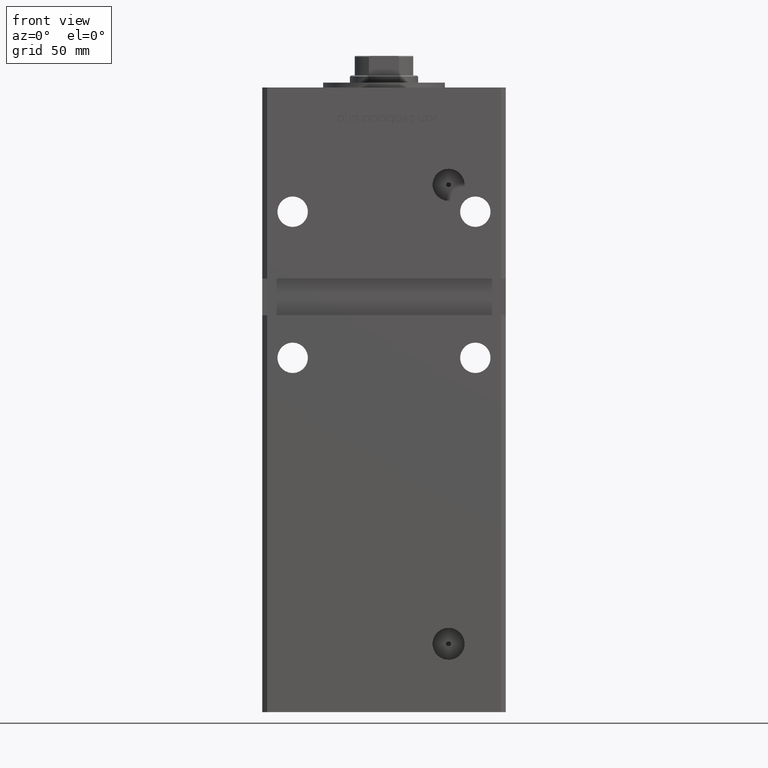
[diagram: clean part render]
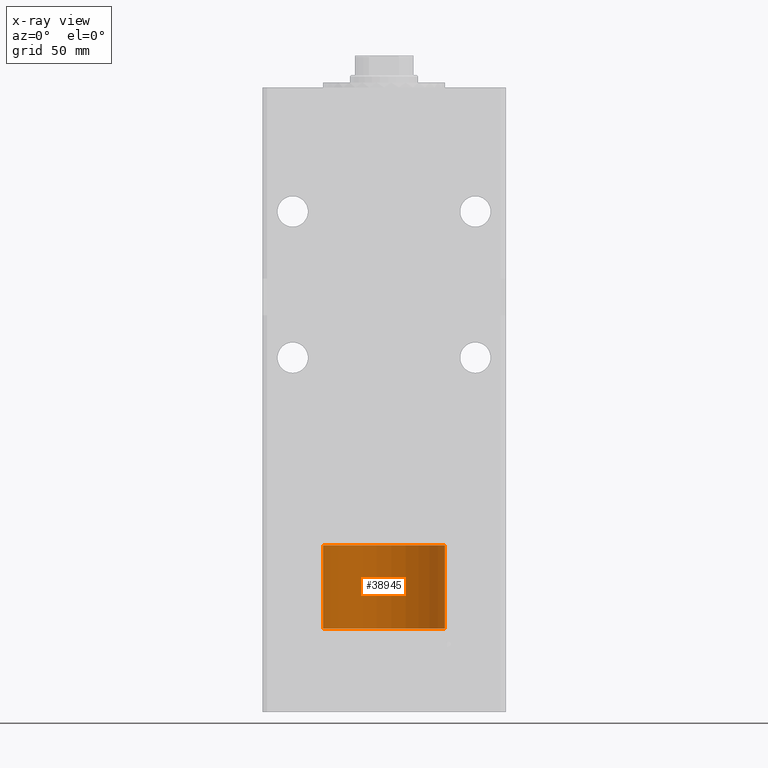
[diagram: x-ray — body ghosted, one internal face saturated and labeled with its STEP entity id]
A machine part, front view, then the same camera in x-ray: the body is ghosted and one INTERNAL B-rep face — a face not visible from any outside direction — is saturated and labeled: STEP entity #38945.
In plain terms, the highlighted cylindrical surface (partial cylindrical patch) has radius 25 mm, axis along (-0, -0, -1).
Its self-contained STEP definition (entity closure, byte-faithful):
#155 = VECTOR ( 'NONE', #33274, 1000.000000000000000 ) ;
#1866 = CARTESIAN_POINT ( 'NONE',  ( -25.00000000000000000, 0.000000000000000000, 0.000000000000000000 ) ) ;
#1886 = EDGE_LOOP ( 'NONE', ( #45531, #7665, #47641, #46605 ) ) ;
#2908 = CARTESIAN_POINT ( 'NONE',  ( 0.000000000000000000, 0.000000000000000000, 34.25000000000000000 ) ) ;
#3511 = CARTESIAN_POINT ( 'NONE',  ( 0.000000000000000000, 0.000000000000000000, 34.25000000000000000 ) ) ;
#7665 = ORIENTED_EDGE ( 'NONE', *, *, #47265, .T. ) ;
#9010 = VERTEX_POINT ( 'NONE', #39426 ) ;
#9318 = AXIS2_PLACEMENT_3D ( 'NONE', #2908, #39704, #12483 ) ;
#9546 = EDGE_CURVE ( 'NONE', #9010, #30934, #42654, .T. ) ;
#10052 = CARTESIAN_POINT ( 'NONE',  ( -25.00000000000000000, 0.000000000000000000, 34.25000000000000000 ) ) ;
#11355 = VERTEX_POINT ( 'NONE', #49163 ) ;
#12483 = DIRECTION ( 'NONE',  ( -1.000000000000000000, 0.000000000000000000, 0.000000000000000000 ) ) ;
#12749 = CYLINDRICAL_SURFACE ( 'NONE', #9318, 25.00000000000000000 ) ;
#13573 = CIRCLE ( 'NONE', #27289, 25.00000000000000000 ) ;
#18389 = LINE ( 'NONE', #10052, #50683 ) ;
#19560 = FACE_OUTER_BOUND ( 'NONE', #1886, .T. ) ;
#20925 = DIRECTION ( 'NONE',  ( 1.000000000000000000, 0.000000000000000000, 0.000000000000000000 ) ) ;
#23209 = EDGE_CURVE ( 'NONE', #30934, #40432, #18389, .T. ) ;
#24719 = DIRECTION ( 'NONE',  ( 0.000000000000000000, 0.000000000000000000, 1.000000000000000000 ) ) ;
#24969 = LINE ( 'NONE', #41620, #155 ) ;
#27289 = AXIS2_PLACEMENT_3D ( 'NONE', #45352, #48590, #20925 ) ;
#30320 = CARTESIAN_POINT ( 'NONE',  ( -25.00000000000000000, 0.000000000000000000, 34.25000000000000000 ) ) ;
#30934 = VERTEX_POINT ( 'NONE', #30320 ) ;
#33274 = DIRECTION ( 'NONE',  ( -0.000000000000000000, -0.000000000000000000, -1.000000000000000000 ) ) ;
#33881 = EDGE_CURVE ( 'NONE', #11355, #40432, #13573, .T. ) ;
#38945 = ADVANCED_FACE ( 'NONE', ( #19560 ), #12749, .T. ) ;
#39426 = CARTESIAN_POINT ( 'NONE',  ( 25.00000000000000000, 3.061616997868383043E-15, 34.25000000000000000 ) ) ;
#39704 = DIRECTION ( 'NONE',  ( -0.000000000000000000, -0.000000000000000000, -1.000000000000000000 ) ) ;
#40032 = AXIS2_PLACEMENT_3D ( 'NONE', #3511, #24719, #49436 ) ;
#40432 = VERTEX_POINT ( 'NONE', #1866 ) ;
#41620 = CARTESIAN_POINT ( 'NONE',  ( 25.00000000000000000, 3.061616997868383043E-15, 34.25000000000000000 ) ) ;
#42654 = CIRCLE ( 'NONE', #40032, 25.00000000000000000 ) ;
#43096 = DIRECTION ( 'NONE',  ( -0.000000000000000000, -0.000000000000000000, -1.000000000000000000 ) ) ;
#45352 = CARTESIAN_POINT ( 'NONE',  ( 0.000000000000000000, 0.000000000000000000, 0.000000000000000000 ) ) ;
#45531 = ORIENTED_EDGE ( 'NONE', *, *, #9546, .F. ) ;
#46605 = ORIENTED_EDGE ( 'NONE', *, *, #23209, .F. ) ;
#47265 = EDGE_CURVE ( 'NONE', #9010, #11355, #24969, .T. ) ;
#47641 = ORIENTED_EDGE ( 'NONE', *, *, #33881, .T. ) ;
#48590 = DIRECTION ( 'NONE',  ( 0.000000000000000000, 0.000000000000000000, 1.000000000000000000 ) ) ;
#49163 = CARTESIAN_POINT ( 'NONE',  ( 25.00000000000000000, 3.061616997868383043E-15, 0.000000000000000000 ) ) ;
#49436 = DIRECTION ( 'NONE',  ( 1.000000000000000000, 0.000000000000000000, 0.000000000000000000 ) ) ;
#50683 = VECTOR ( 'NONE', #43096, 1000.000000000000000 ) ;